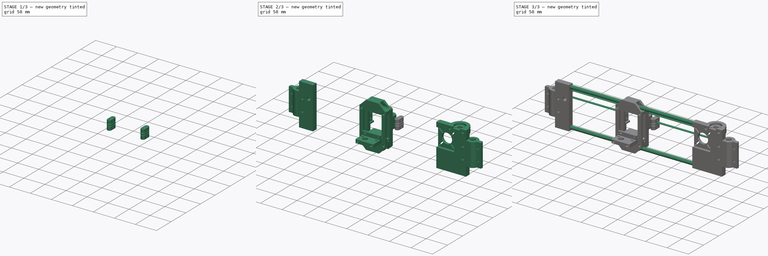
[diagram: build sequence overview — one tinted view per stage of 3, left to right]
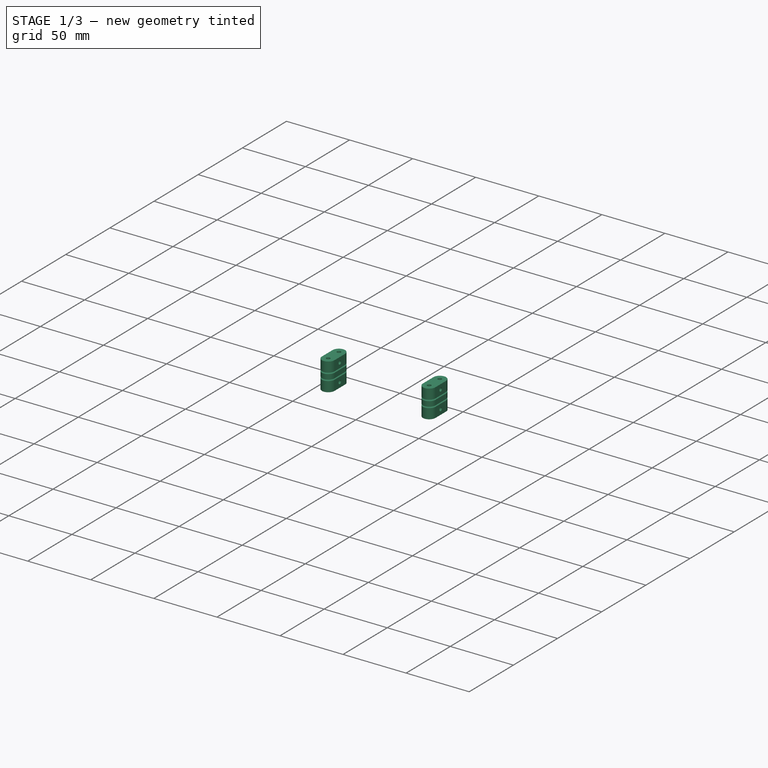
[diagram: stage 1 of 3 — iso view after this stage's code; geometry added in this stage tinted green]
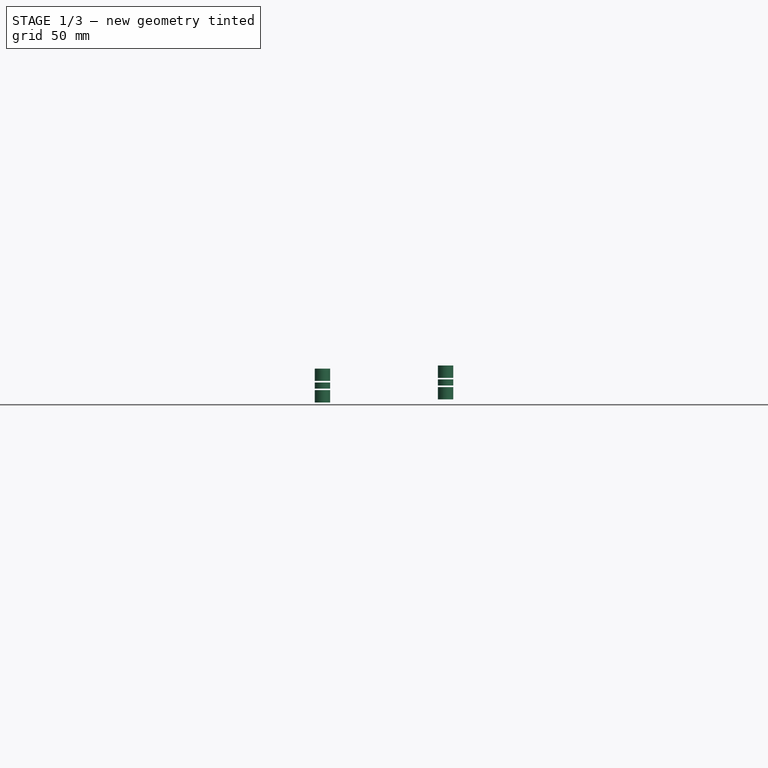
[diagram: stage 1 of 3 — front view after this stage's code; geometry added in this stage tinted green]
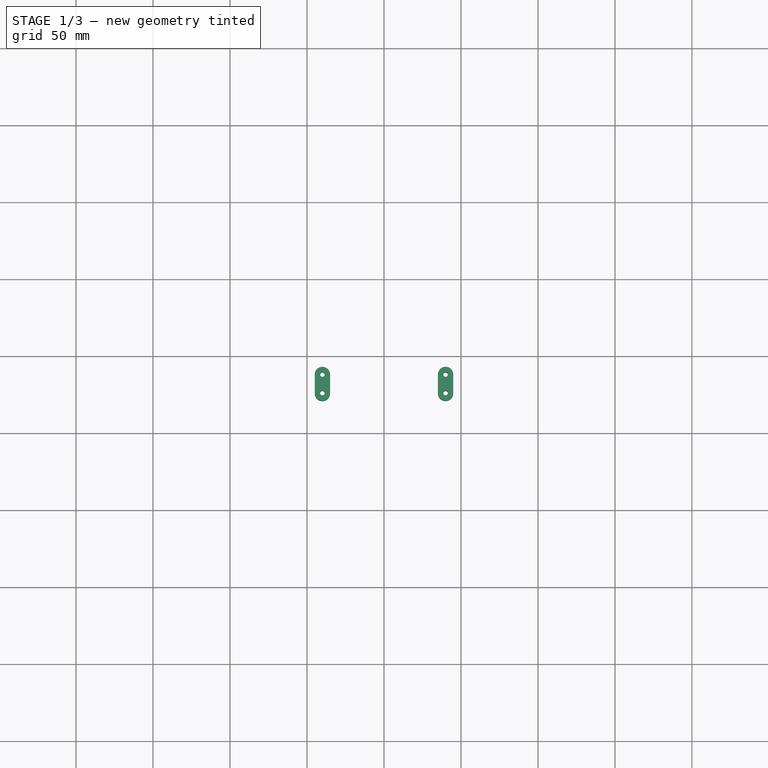
[diagram: stage 1 of 3 — top view after this stage's code; geometry added in this stage tinted green]
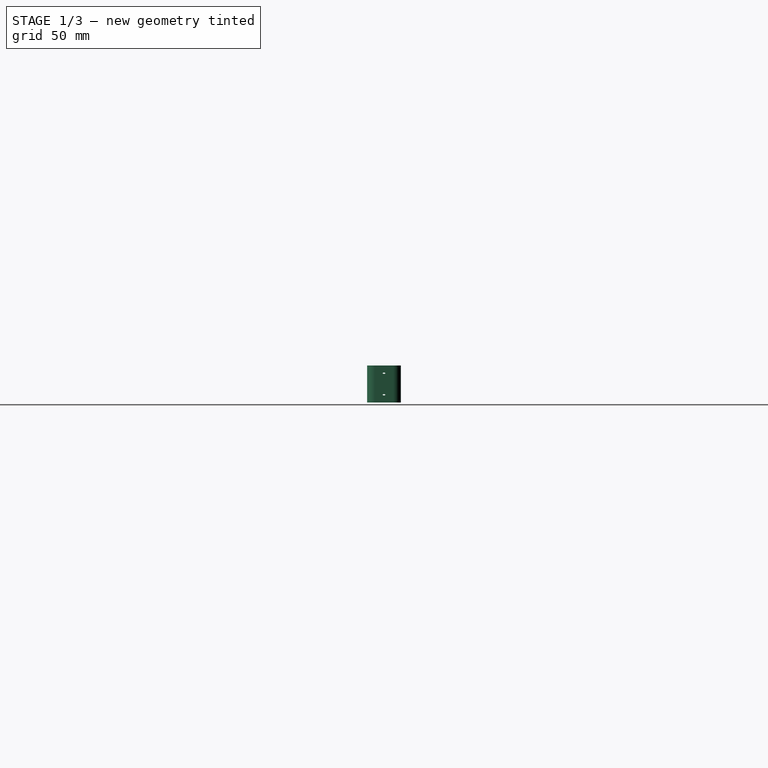
[diagram: stage 1 of 3 — right view after this stage's code; geometry added in this stage tinted green]
FCSTD DOCUMENT  (FreeCAD 0.16R6707 (Git))
Label: X-Axis
License: All rights reserved
LicenseURL: http://en.wikipedia.org/wiki/All_rights_reserved
objects: Part::Feature×20, Part::MultiFuse×5, Sketcher::SketchObject×2, PartDesign::Pad×2
note: 31 computed .brp shape members not serialized (recipe doc carries the construction recipe); baked Part::Feature solids carry a one-line shape summary decoded from their .brp

FEATURE [Part::Feature] Part__Feature015  label="RBBeltTensioner"
  Placement = pos=(70,26,46) rot=(0,0,1;0rad)
  shape: bbox 10 x 22 x 8 mm, 25 faces (baked)
FEATURE [Part::Feature] Part__Feature016  label="RBeltClip"
  Placement = pos=(70,26,55) rot=(0,0,1;0rad)
  shape: bbox 10 x 22 x 4 mm, 8 faces (baked)
FEATURE [Part::Feature] Part__Feature017  label="RTBeltTensioner"
  Placement = pos=(70,38,68) rot=(1,0,0;3.14159rad)
  shape: bbox 10 x 22 x 8 mm, 25 faces (baked)
FEATURE [Part::MultiFuse] Fusion002  label="RBeltGrip"
  Placement = pos=(-30,0,2) rot=(0,0,1;0rad)
  Shapes = -> [Part__Feature015,Part__Feature016,Part__Feature017]
FEATURE [Part::MultiFuse] Fusion003  label="LBeltGrip"
  Placement = pos=(-110,0,0) rot=(0,0,1;0rad)
  Shapes = -> [Part__Feature020,Part__Feature021,Part__Feature022]
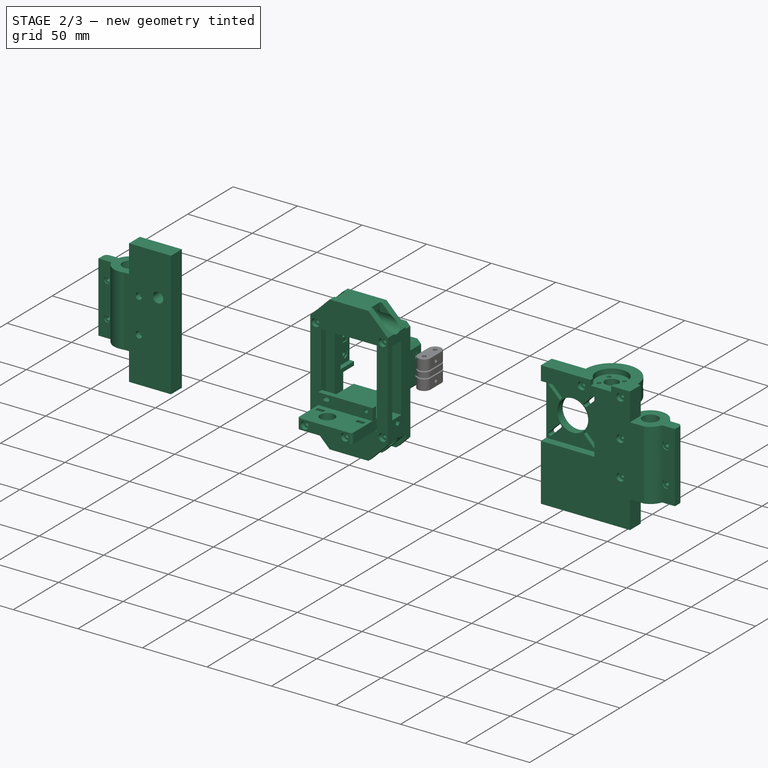
[diagram: stage 2 of 3 — iso view after this stage's code; geometry added in this stage tinted green]
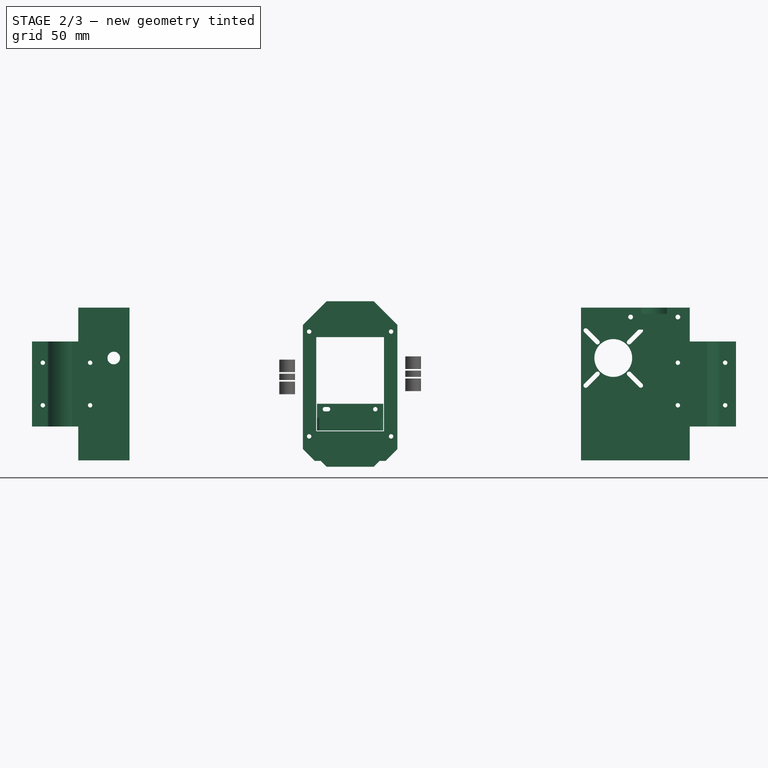
[diagram: stage 2 of 3 — front view after this stage's code; geometry added in this stage tinted green]
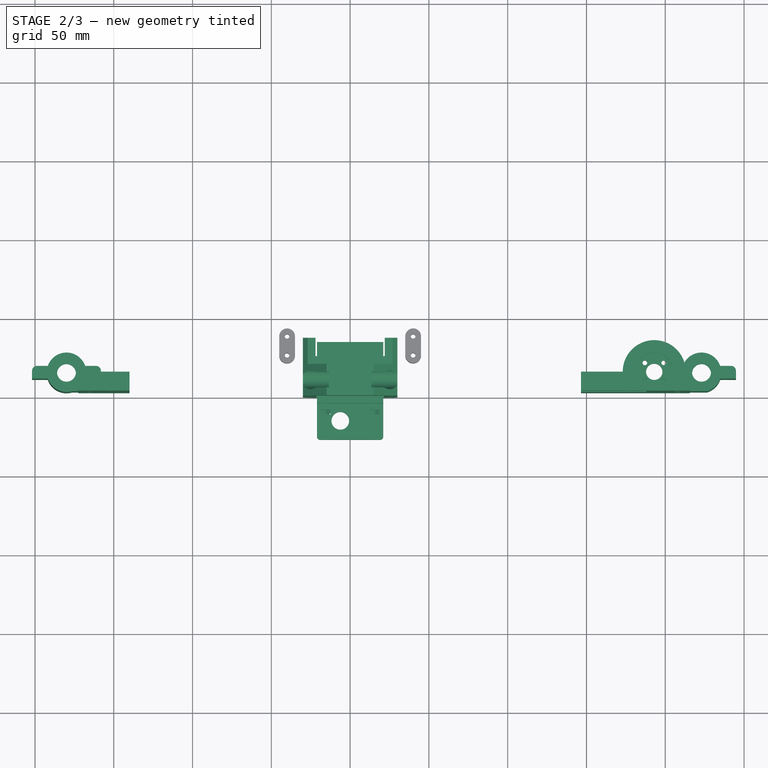
[diagram: stage 2 of 3 — top view after this stage's code; geometry added in this stage tinted green]
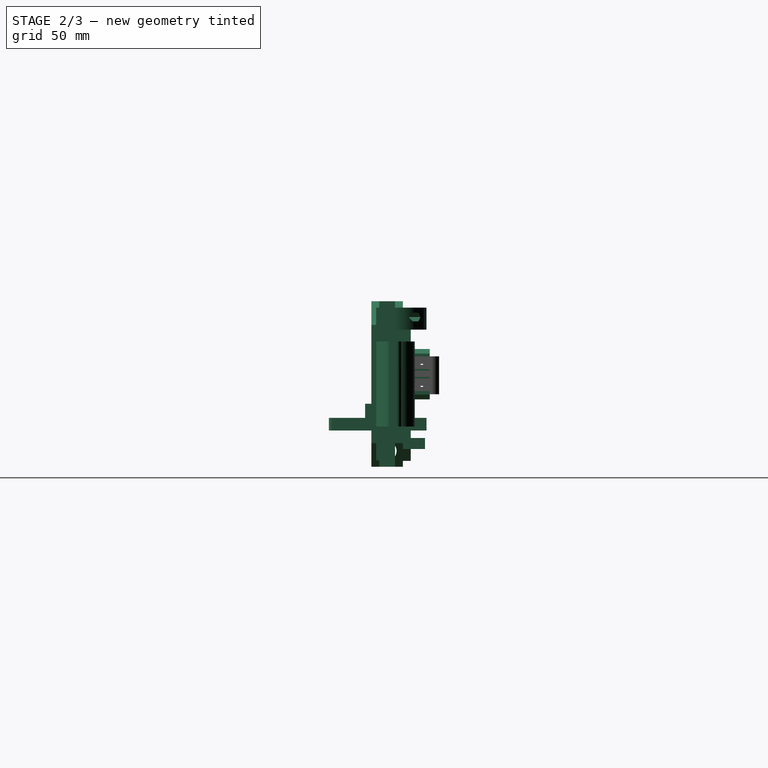
[diagram: stage 2 of 3 — right view after this stage's code; geometry added in this stage tinted green]
FEATURE [Part::Feature] Part__Feature043  label="LShoulder"
  Placement = pos=(-180,15,4) rot=(0,0,1;0rad)
  shape: bbox 61.84 x 12.5 x 97 mm, 53 faces (baked)
FEATURE [Part::Feature] Part__Feature044  label="Peripheral"
  Placement = pos=(30,20,11.25) rot=(0,0.707107,0.707107;3.14159rad)
  shape: bbox 60 x 17 x 88 mm, 127 faces (baked)
FEATURE [Part::Feature] Part__Feature045  label="RShoulder"
  Placement = pos=(223,15,4) rot=(0,0,1;0rad)
  shape: bbox 98.34 x 12 x 97 mm, 91 faces (baked)
FEATURE [Part::MultiFuse] Fusion  label="Shoulders"
  Shapes = -> [Part__Feature034,Part__Feature037,Part__Feature038,Part__Feature045,Part__Feature043]
FEATURE [Part::Feature] Part__Feature046  label="Lever"
  Placement = pos=(-21,-15,23) rot=(0,0,1;0rad)
  shape: bbox 42 x 50 x 17 mm, 46 faces (baked)
FEATURE [Part::Feature] Part__Feature047  label="HotEndMount"
  Placement = pos=(21,-15,23) rot=(0,0,1;3.14159rad)
  shape: bbox 42 x 12 x 8 mm, 18 faces (baked)
FEATURE [Part::MultiFuse] Fusion004  label="HotEndMount001"
  Shapes = -> [Part__Feature046,Part__Feature047]
FEATURE [Part::MultiFuse] Fusion005  label="X-Carrage"
  Shapes = -> [Part__Feature,Part__Feature029,Fusion002,Part__Feature044,Fusion003]
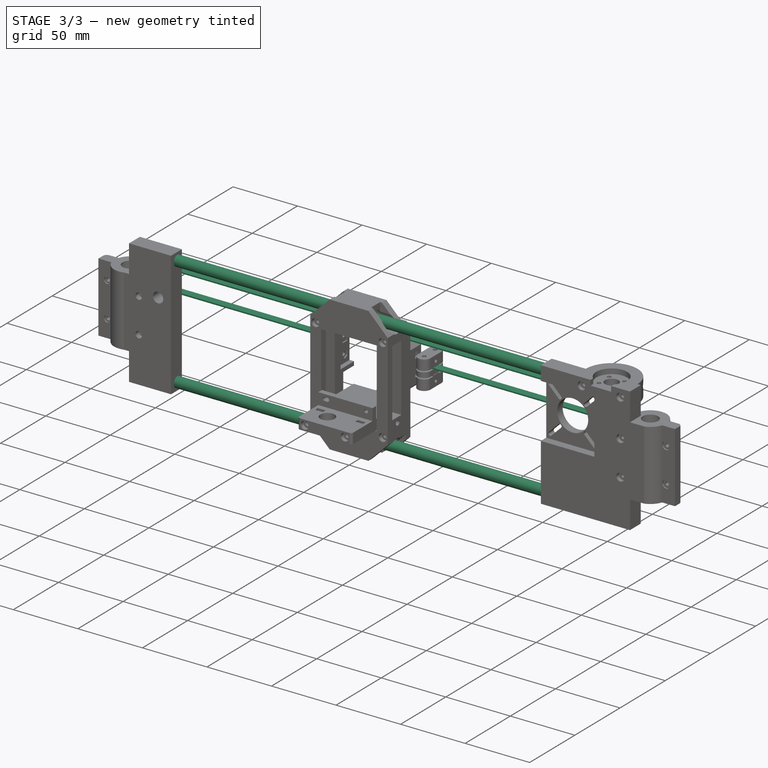
[diagram: stage 3 of 3 — iso view after this stage's code; geometry added in this stage tinted green]
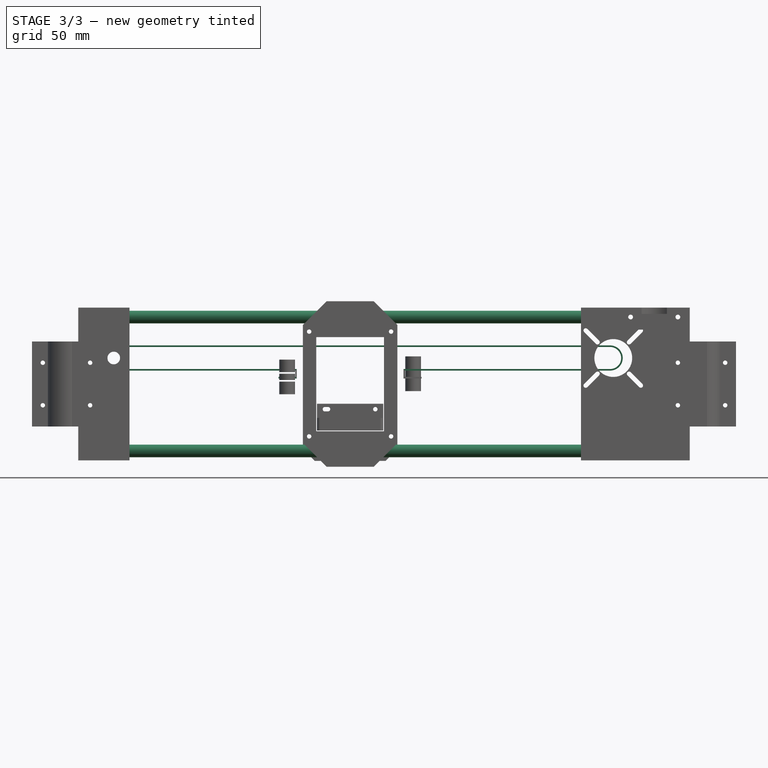
[diagram: stage 3 of 3 — front view after this stage's code; geometry added in this stage tinted green]
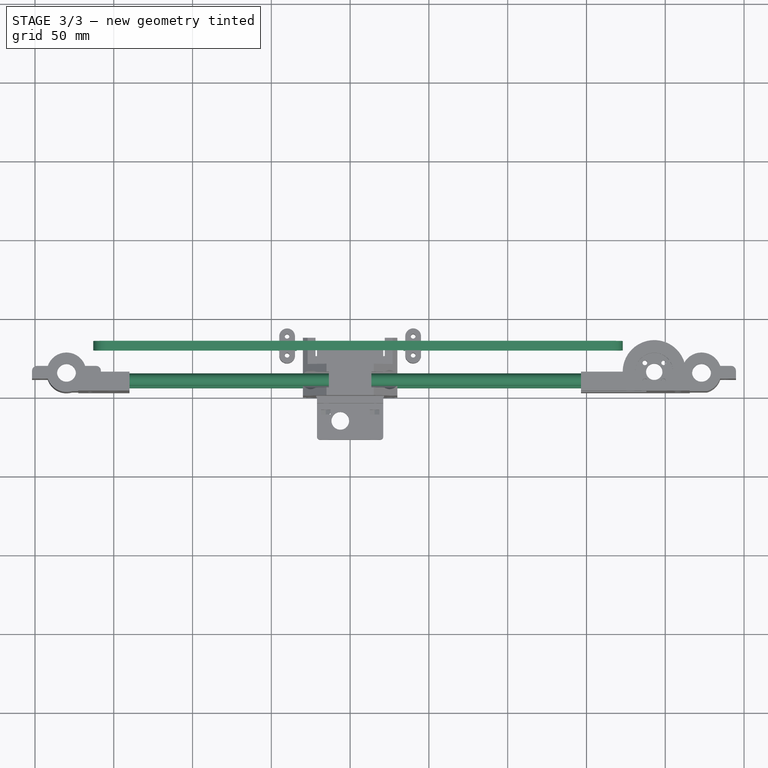
[diagram: stage 3 of 3 — top view after this stage's code; geometry added in this stage tinted green]
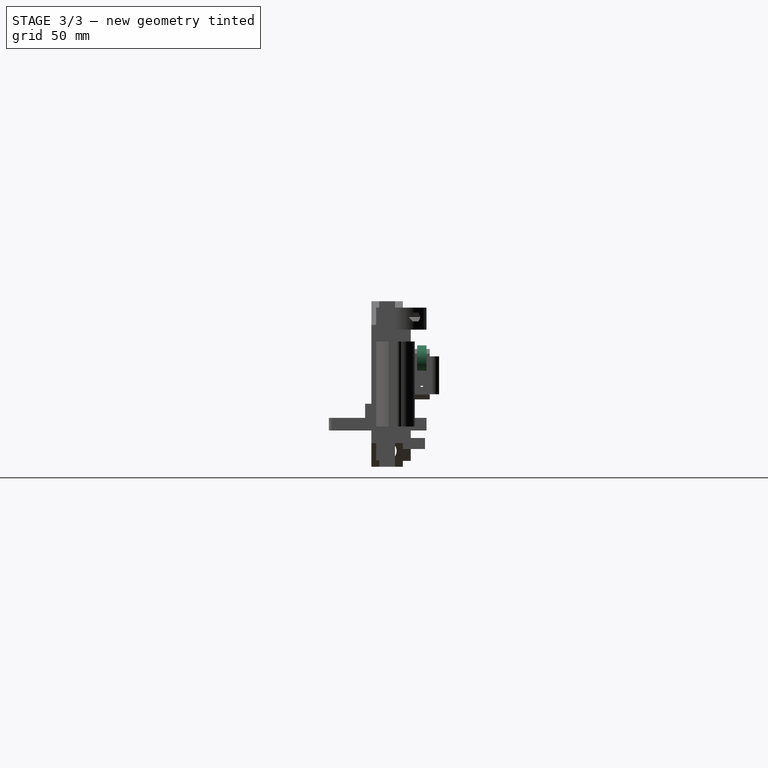
[diagram: stage 3 of 3 — right view after this stage's code; geometry added in this stage tinted green]
FEATURE [Part::Feature] Part__Feature002  label="Nema17"
  Placement = pos=(20.5,42.5,72) rot=(0,0.707107,-0.707107;3.14159rad)
  shape: bbox 41 x 55.5 x 43 mm, 73 faces (baked)
FEATURE [Part::Feature] Part__Feature008  label="Nema17_X"
  Placement = pos=(146.5,-34,89.5) rot=(-1,0,0;1.5708rad)
  shape: bbox 41 x 55.5 x 43 mm, 73 faces (baked)
FEATURE [Sketcher::SketchObject] Sketch
  Placement = pos=(0,35,12) rot=(1,0,0;1.5708rad)
  sketch-geometry (20):
    g0: ArcOfCircle CenterX=-155 CenterY=57 CenterZ=0 NormalX=0 NormalY=0 NormalZ=1 Radius=7 StartAngle=1.5708 EndAngle=4.71239
    g1: ArcOfCircle CenterX=165 CenterY=57 CenterZ=0 NormalX=0 NormalY=0 NormalZ=1 Radius=7 StartAngle=4.71239 EndAngle=7.85398
    g2: LineSegment StartX=-155 StartY=64 StartZ=0 EndX=165 EndY=64 EndZ=0
    g3: ArcOfCircle CenterX=-155 CenterY=57 CenterZ=0 NormalX=0 NormalY=0 NormalZ=1 Radius=8 StartAngle=1.5708 EndAngle=4.71239
    g4: ArcOfCircle CenterX=165 CenterY=57 CenterZ=0 NormalX=0 NormalY=0 NormalZ=1 Radius=8 StartAngle=4.71239 EndAngle=7.85398
    g5: LineSegment StartX=-155 StartY=65 StartZ=0 EndX=165 EndY=65 EndZ=0
    g6: LineSegment StartX=165 StartY=50 StartZ=0 EndX=33.8479 EndY=50 EndZ=0
    g7: LineSegment StartX=33.8479 StartY=50 StartZ=0 EndX=33.8479 EndY=44 EndZ=0
    g8: LineSegment StartX=33.8479 StartY=44 StartZ=0 EndX=45.4113 EndY=44 EndZ=0
    g9: LineSegment StartX=45.4113 StartY=44 StartZ=0 EndX=45.4113 EndY=45 EndZ=0
    g10: LineSegment StartX=45.4113 StartY=45 StartZ=0 EndX=34.8479 EndY=45 EndZ=0
    g11: LineSegment StartX=34.8479 StartY=45 StartZ=0 EndX=34.8479 EndY=49 EndZ=0
    g12: LineSegment StartX=34.8479 StartY=49 StartZ=0 EndX=165 EndY=49 EndZ=0
    g13: LineSegment StartX=-155 StartY=50 StartZ=0 EndX=-33.8479 EndY=50 EndZ=0
    g14: LineSegment StartX=-34.8479 StartY=49 StartZ=0 EndX=-155 EndY=49 EndZ=0
    g15: LineSegment StartX=-33.8479 StartY=50 StartZ=0 EndX=-33.8479 EndY=44 EndZ=0
    g16: LineSegment StartX=-33.8479 StartY=44 StartZ=0 EndX=-45.4113 EndY=44 EndZ=0
    g17: LineSegment StartX=-45.4113 StartY=44 StartZ=0 EndX=-45.4113 EndY=45 EndZ=0
    g18: LineSegment StartX=-45.4113 StartY=45 StartZ=0 EndX=-34.8479 EndY=45 EndZ=0
    g19: LineSegment StartX=-34.8479 StartY=45 StartZ=0 EndX=-34.8479 EndY=49 EndZ=0
  constraints (56):
    c: Tangent(g0,g2) = 1.5708
    c: Tangent(g2,g1) = 1.5708
    c: Equal(g0,g1)
    c: Tangent(g3,g5) = 1.5708
    c: Tangent(g5,g4) = 1.5708
    c: Equal(g3,g4)
    c: Coincident(g1,g4)
    c: Coincident(g0,g3)
    c: Radius(g0) = 7
    c: Radius(g3) = 8
    c: DistanceY(g-1,g0) = 57
    c: DistanceX(g0,g1) = 320
    c: Horizontal(g6)
    c: Coincident(g6,g7)
    c: Vertical(g7)
    c: Coincident(g7,g8)
    c: Horizontal(g8)
    c: Coincident(g8,g9)
    c: Coincident(g9,g10)
    c: Horizontal(g10)
    c: Coincident(g10,g11)
    c: Vertical(g11)
    c: Coincident(g11,g12)
    c: Horizontal(g12)
    c: Vertical(g9)
    c: Coincident(g12,g4)
    c: Coincident(g6,g1)
    c: DistanceX(g6,g11) = 1
    c: DistanceY(g-1,g1) = 57
    c: Horizontal(g13)
    c: Horizontal(g14)
    c: Coincident(g13,g0)
    c: Coincident(g14,g3)
    c: Symmetric(g3,g3,g0)
    c: Symmetric(g0,g0,g0)
    c: Vertical(g15)
    c: Coincident(g15,g16)
    c: Coincident(g16,g17)
    c: Vertical(g17)
    c: Coincident(g17,g18)
    c: Horizontal(g18)
    c: Coincident(g18,g19)
    c: Vertical(g19)
    c: Horizontal(g16)
    c: Coincident(g19,g14)
    c: Coincident(g15,g13)
    c: DistanceX(g14,g13) = 1
    c: DistanceY(g17,g17) = 1
    c: DistanceY(g15,g13) = 6
    c: DistanceX(g-1,g1) = 165
    c: Equal(g16,g8)
    c: Equal(g15,g7)
    c: Equal(g19,g11)
    c: Equal(g17,g9)
    c: DistanceX(g13,g6) = 67.6959
    c: Symmetric(g13,g6,g-2)
FEATURE [PartDesign::Pad] Pad  label="Belt"
  Length = 6
  Length2 = 100
  Placement = pos=(0,35,12) rot=(1,0,0;1.5708rad)
  Sketch = -> Sketch
  Type = 0
FEATURE [Part::Feature] Part__Feature020  label="RBBeltTensioner001"
  Placement = pos=(70,26,46) rot=(0,0,1;0rad)
  shape: bbox 10 x 22 x 8 mm, 25 faces (baked)
FEATURE [Part::Feature] Part__Feature021  label="RBeltClip001"
  Placement = pos=(70,26,55) rot=(0,0,1;0rad)
  shape: bbox 10 x 22 x 4 mm, 8 faces (baked)
FEATURE [Part::Feature] Part__Feature022  label="RTBeltTensioner001"
  Placement = pos=(70,38,68) rot=(1,0,0;3.14159rad)
  shape: bbox 10 x 22 x 8 mm, 25 faces (baked)
FEATURE [Part::Feature] Part__Feature024  label="Spring"
  Placement = pos=(-10.5,27,15) rot=(0,0,1;0rad)
  shape: bbox 13.99 x 15.54 x 13.93 mm, 6 faces, 0 solids (baked)
FEATURE [Part::Feature] Part__Feature025  label="HotEnd"
  Placement = pos=(-6.25,-15,-36) rot=(0,0,1;0rad)
  shape: bbox 24 x 24 x 70.5 mm, 70 faces (baked)
FEATURE [Part::Feature] Part__Feature029  label="FrontPanel"
  Placement = pos=(-30,0,105) rot=(-1,0,0;1.5708rad)
  shape: bbox 60 x 15 x 105 mm, 69 faces (baked)
FEATURE [Part::Feature] Part__Feature  label="BackPanel"
  Placement = pos=(-30,20,0) rot=(1,0,0;1.5708rad)
  shape: bbox 60 x 10 x 105 mm, 53 faces (baked)
FEATURE [Part::Feature] Part__Feature034  label="RDoubleLinearBearingMount"
  Placement = pos=(223,15,25.5) rot=(0,0,1;0rad)
  shape: bbox 43.69 x 12.5 x 54 mm, 40 faces (baked)
FEATURE [Part::Feature] Part__Feature037  label="LeadScrewNutMount"
  Placement = pos=(193,15,87) rot=(0,0,1;0rad)
  shape: bbox 40 x 20 x 14 mm, 28 faces (baked)
FEATURE [Part::Feature] Part__Feature038  label="LDoubleLinearBearingMount"
  Placement = pos=(-180,15,25.5) rot=(0,0,1;0rad)
  shape: bbox 43.69 x 12.5 x 54 mm, 40 faces (baked)
FEATURE [Sketcher::SketchObject] Sketch001
  Placement = pos=(0,0,0) rot=(0.57735,0.57735,0.57735;2.0944rad)
  sketch-geometry (2):
    g0: Circle CenterX=10 CenterY=95 CenterZ=0 NormalX=0 NormalY=0 NormalZ=1 Radius=4
    g1: Circle CenterX=10 CenterY=10 CenterZ=0 NormalX=0 NormalY=0 NormalZ=1 Radius=4
  constraints (6):
    c: DistanceX(g1,g0) = 0
    c: Radius(g0) = 4
    c: Equal(g0,g1)
    c: DistanceX(g-1,g0) = 10
    c: DistanceY(g1,g0) = 85
    c: DistanceY(g-1,g1) = 10
FEATURE [PartDesign::Pad] Pad001  label="X-Rods"
  Length = 340
  Length2 = 100
  Midplane = true
  Placement = pos=(0,0,0) rot=(0.57735,0.57735,0.57735;2.0944rad)
  Sketch = -> Sketch001
  Type = 0
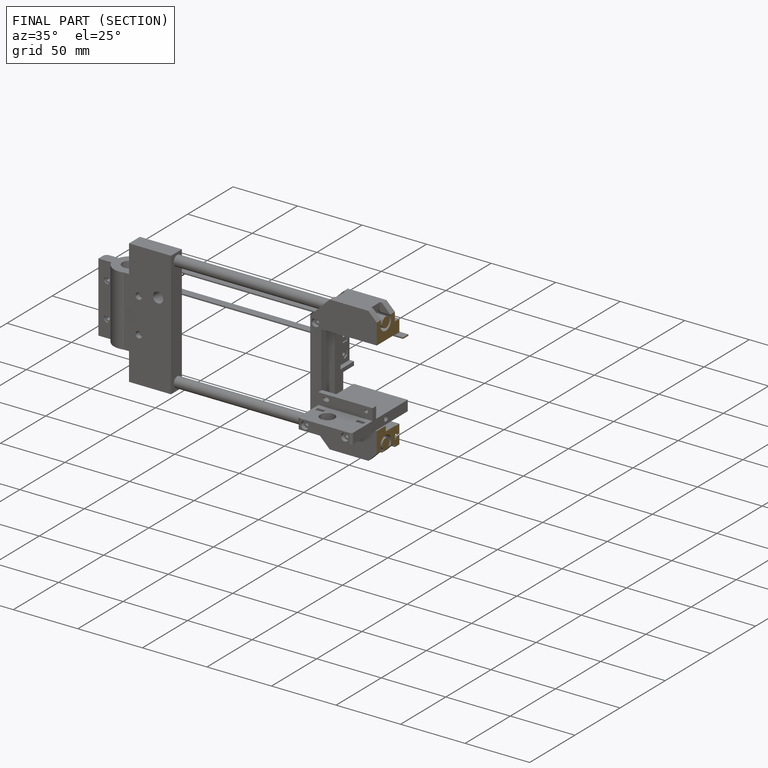
[diagram: finished part — half-section view (interior)]
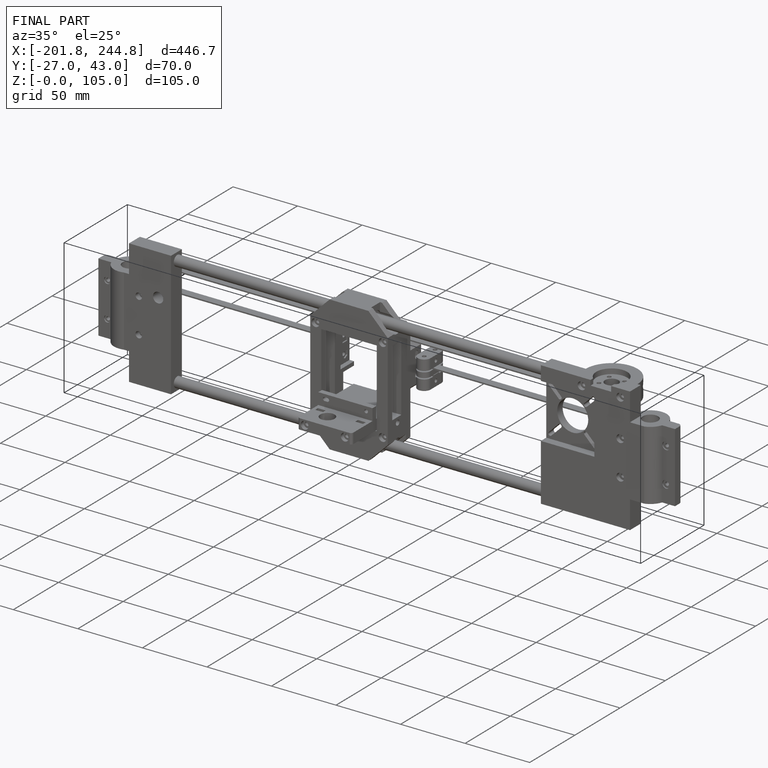
[diagram: finished part — iso view with bounding-box wireframe]
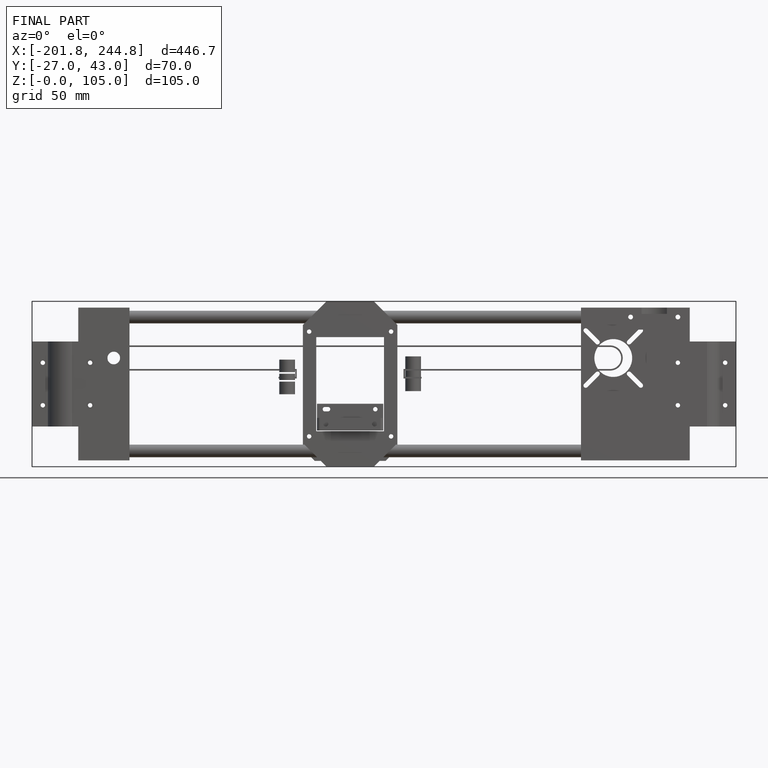
[diagram: finished part — front view with bounding-box wireframe]
